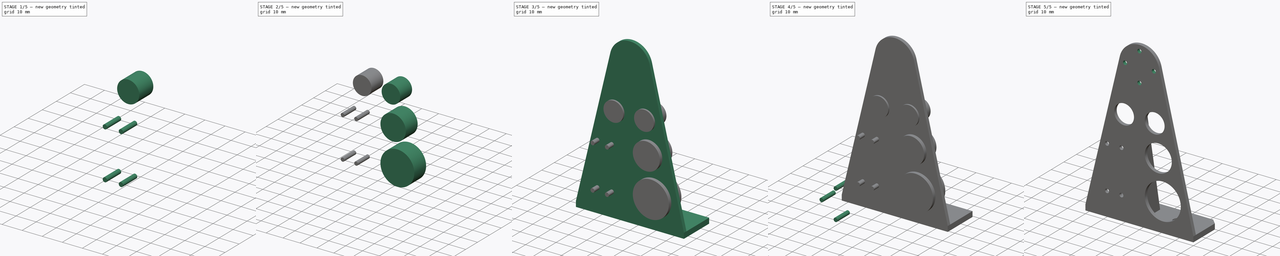
[diagram: build sequence overview — one tinted view per stage of 5, left to right]
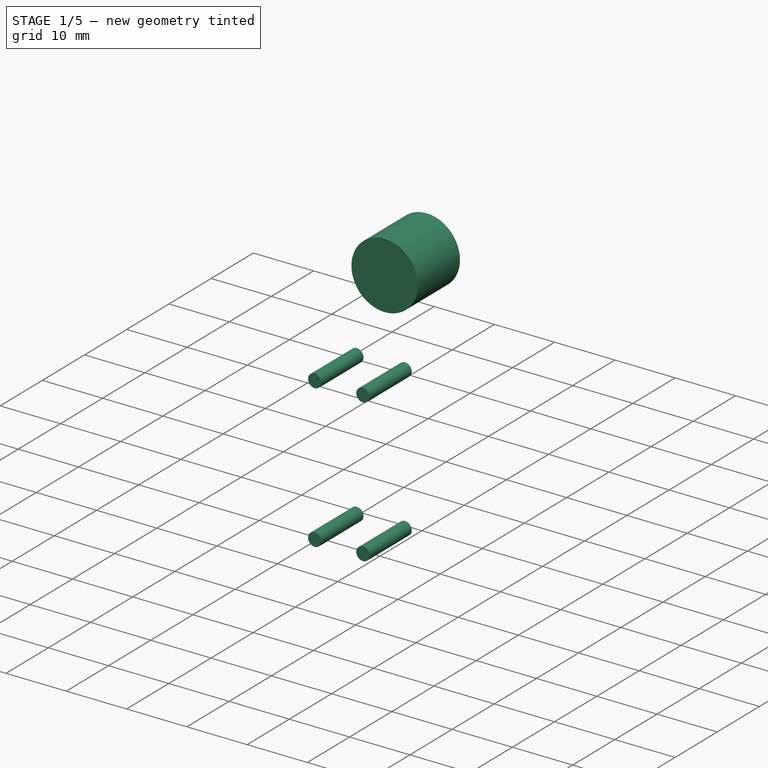
[diagram: stage 1 of 5 — iso view after this stage's code; geometry added in this stage tinted green]
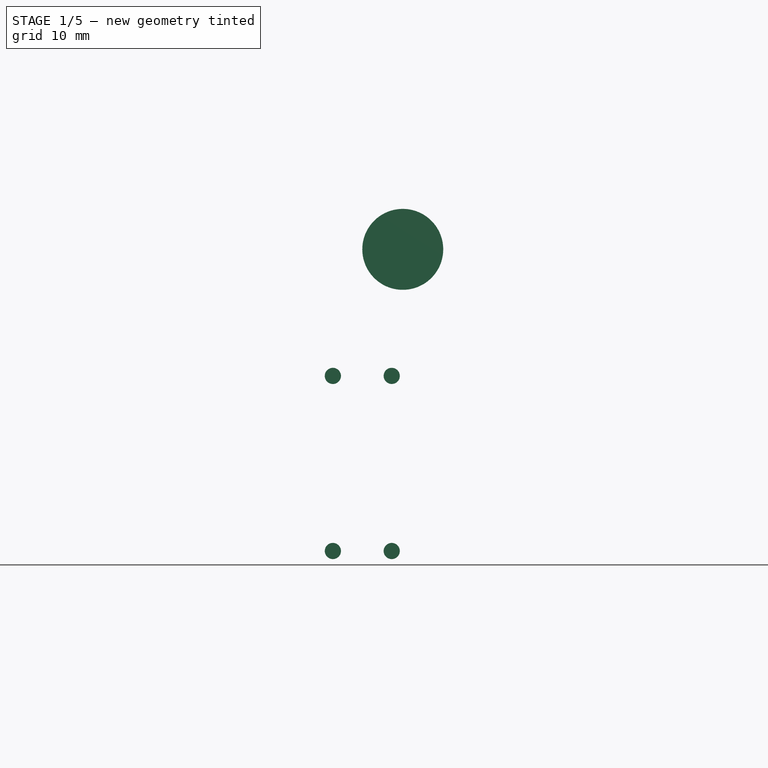
[diagram: stage 1 of 5 — front view after this stage's code; geometry added in this stage tinted green]
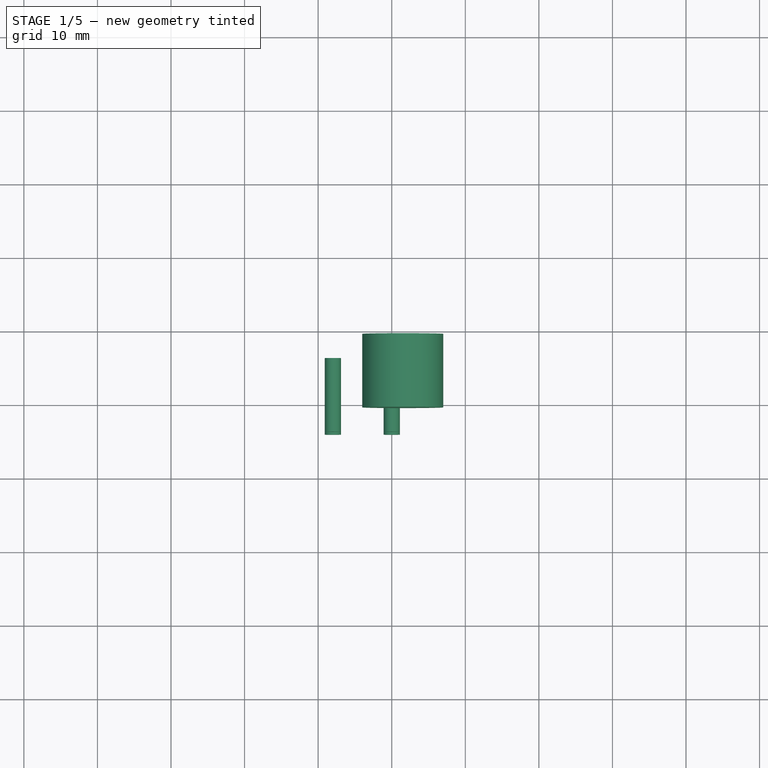
[diagram: stage 1 of 5 — top view after this stage's code; geometry added in this stage tinted green]
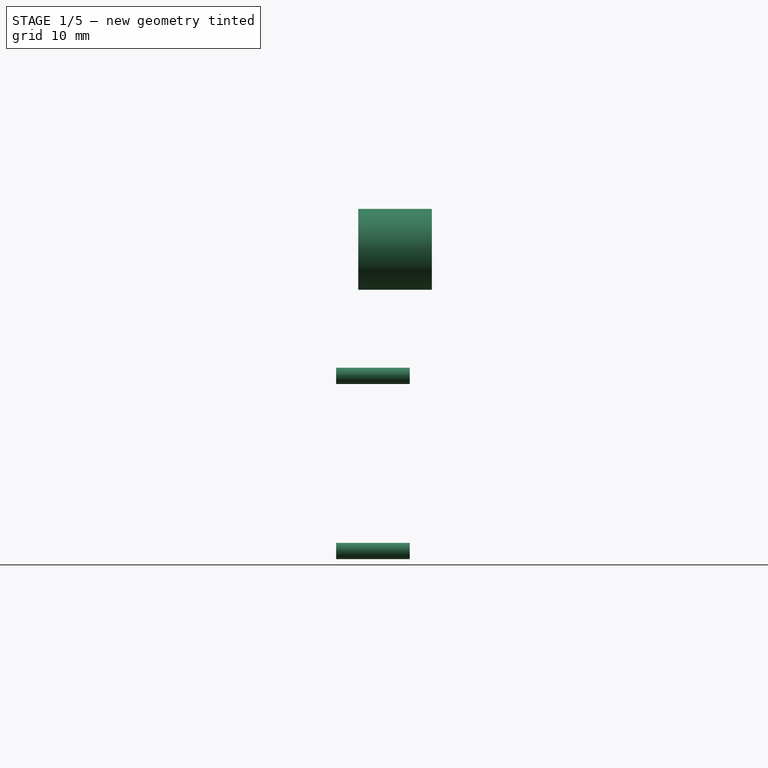
[diagram: stage 1 of 5 — right view after this stage's code; geometry added in this stage tinted green]
FCSTD DOCUMENT  (FreeCAD 0.15R4671 (Git))
Label: encoder_frame
License: All rights reserved
LicenseURL: http://en.wikipedia.org/wiki/All_rights_reserved
objects: Part::Cylinder×15, Part::MultiFuse×7, Sketcher::SketchObject×2, Part::Extrusion×2, Part::Cut×2, Part::Box×1, Part::Chamfer×1
note: 30 computed .brp shape members not serialized (recipe doc carries the construction recipe); baked Part::Feature solids carry a one-line shape summary decoded from their .brp

FEATURE [Part::Cylinder] Cylinder012
  Angle = 360
  Height = 10
  Placement = pos=(21.5,-1,54) rot=(-1,0,0;1.5708rad)
  Radius = 5.5
FEATURE [Part::Cylinder] Cylinder013
  Angle = 360
  Height = 10
  Placement = pos=(0,0,0) rot=(0,1,0;1.5708rad)
  Radius = 1.1
FEATURE [Part::Cylinder] Cylinder014
  Angle = 360
  Height = 10
  Placement = pos=(0,8,0) rot=(0,1,0;1.5708rad)
  Radius = 1.1
FEATURE [Part::Cylinder] Cylinder015
  Angle = 360
  Height = 10
  Placement = pos=(0,0,23.8) rot=(0,1,0;1.5708rad)
  Radius = 1.1
FEATURE [Part::Cylinder] Cylinder016
  Angle = 360
  Height = 10
  Placement = pos=(0,8,23.8) rot=(0,1,0;1.5708rad)
  Radius = 1.1
FEATURE [Part::MultiFuse] Fusion005
  Placement = pos=(20,-4,13) rot=(0,0,1;1.5708rad)
  Shapes = -> [Cylinder016,Cylinder013,Cylinder015,Cylinder014]
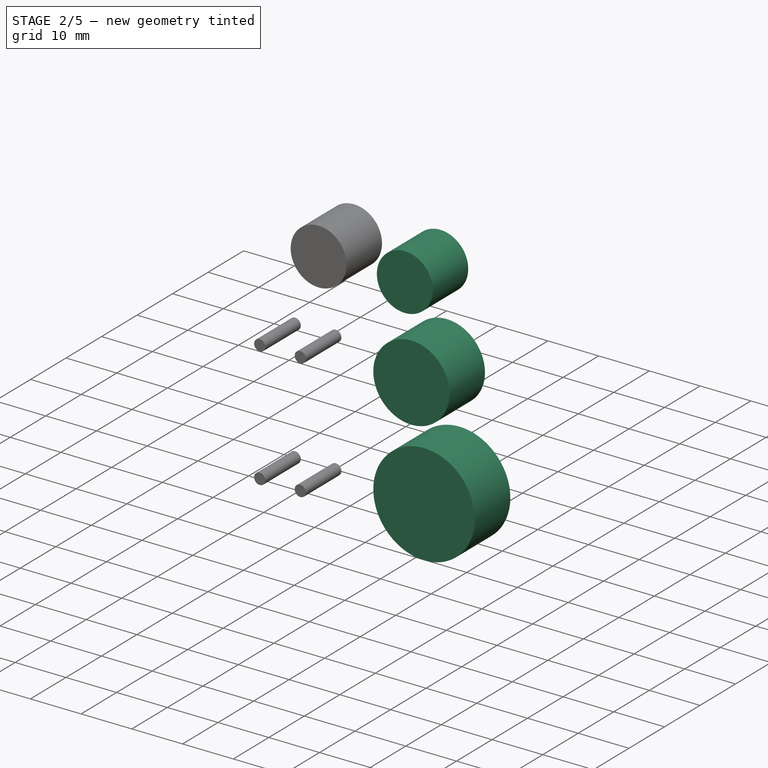
[diagram: stage 2 of 5 — iso view after this stage's code; geometry added in this stage tinted green]
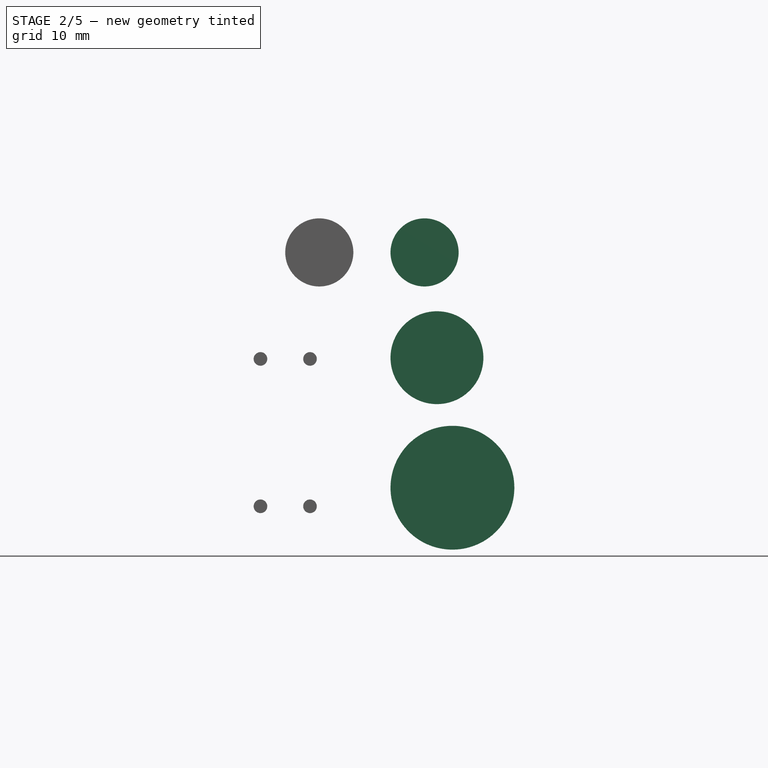
[diagram: stage 2 of 5 — front view after this stage's code; geometry added in this stage tinted green]
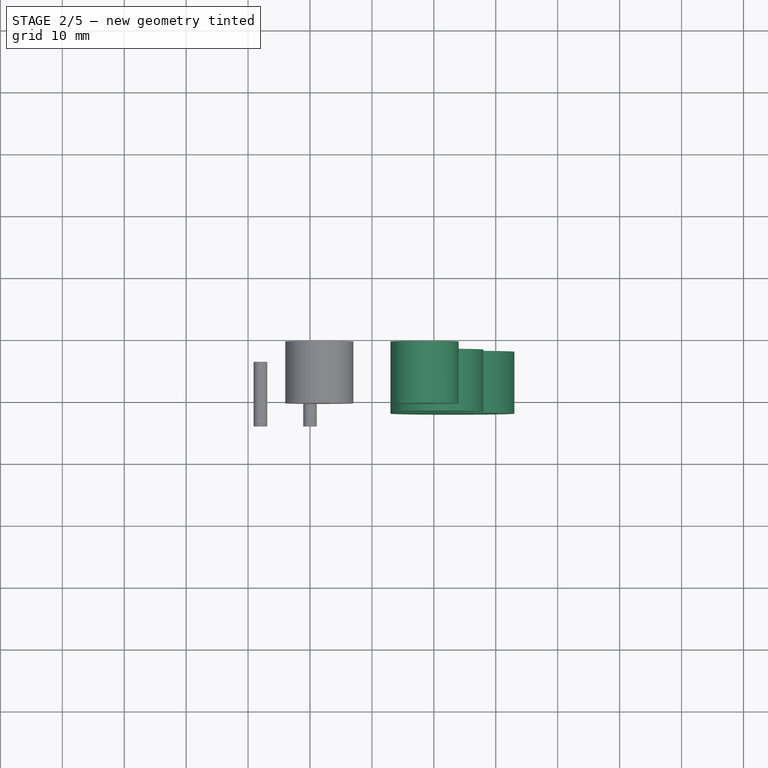
[diagram: stage 2 of 5 — top view after this stage's code; geometry added in this stage tinted green]
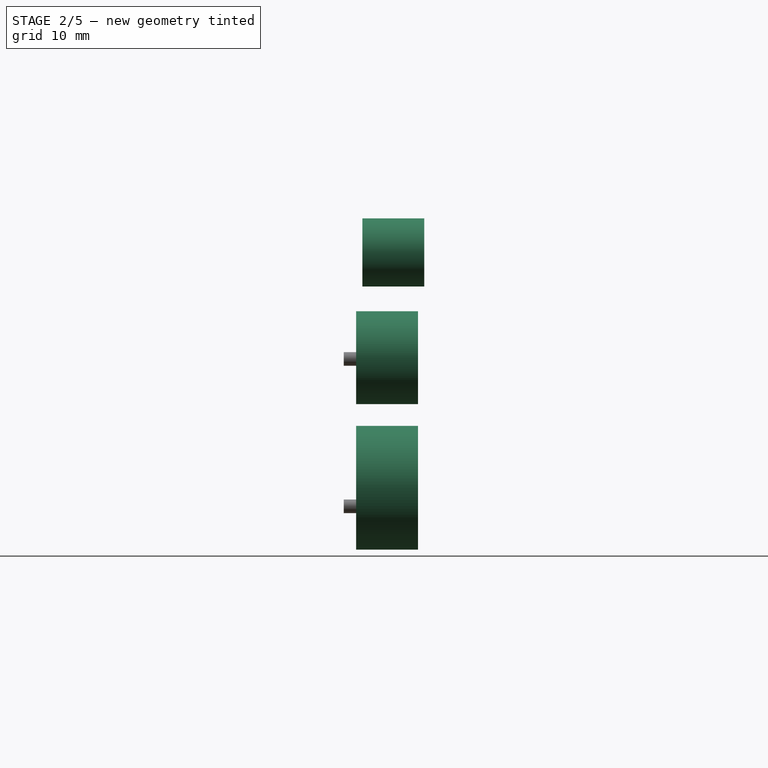
[diagram: stage 2 of 5 — right view after this stage's code; geometry added in this stage tinted green]
FEATURE [Part::Cylinder] Cylinder006
  Angle = 360
  Height = 10
  Placement = pos=(43,-2,16) rot=(-1,0,0;1.5708rad)
  Radius = 10
FEATURE [Part::Cylinder] Cylinder007
  Angle = 360
  Height = 10
  Placement = pos=(40.5,-2,37) rot=(-1,0,0;1.5708rad)
  Radius = 7.5
FEATURE [Part::Cylinder] Cylinder008
  Angle = 360
  Height = 10
  Placement = pos=(38.5,-1,54) rot=(-1,0,0;1.5708rad)
  Radius = 5.5
FEATURE [Part::MultiFuse] Fusion004
  Shapes = -> [Cylinder008,Cylinder006,Cylinder007]
FEATURE [Part::Cylinder] Cylinder011
  Angle = 360
  Height = 10
  Placement = pos=(38.5,-1,54) rot=(-1,0,0;1.5708rad)
  Radius = 5.5
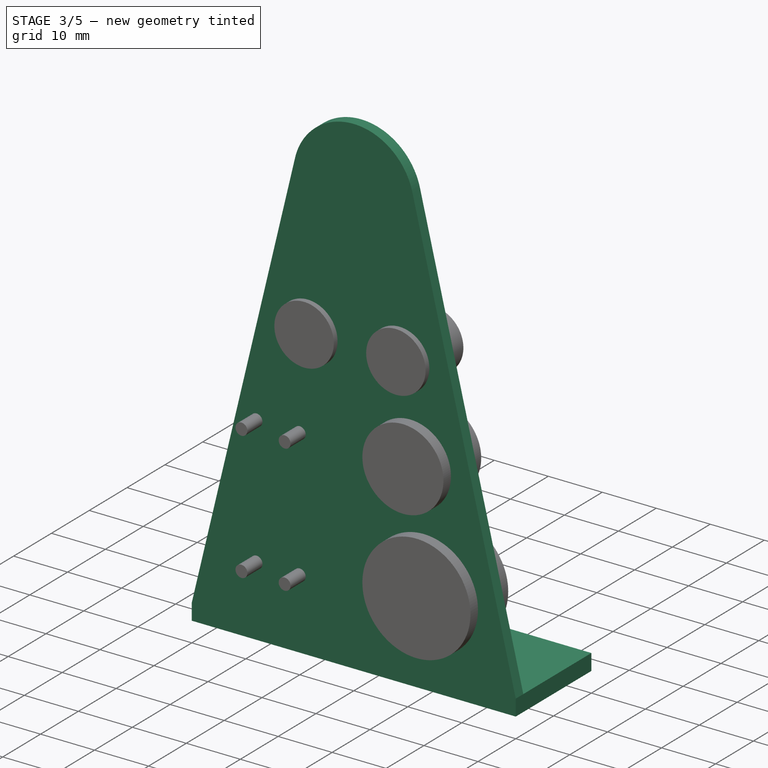
[diagram: stage 3 of 5 — iso view after this stage's code; geometry added in this stage tinted green]
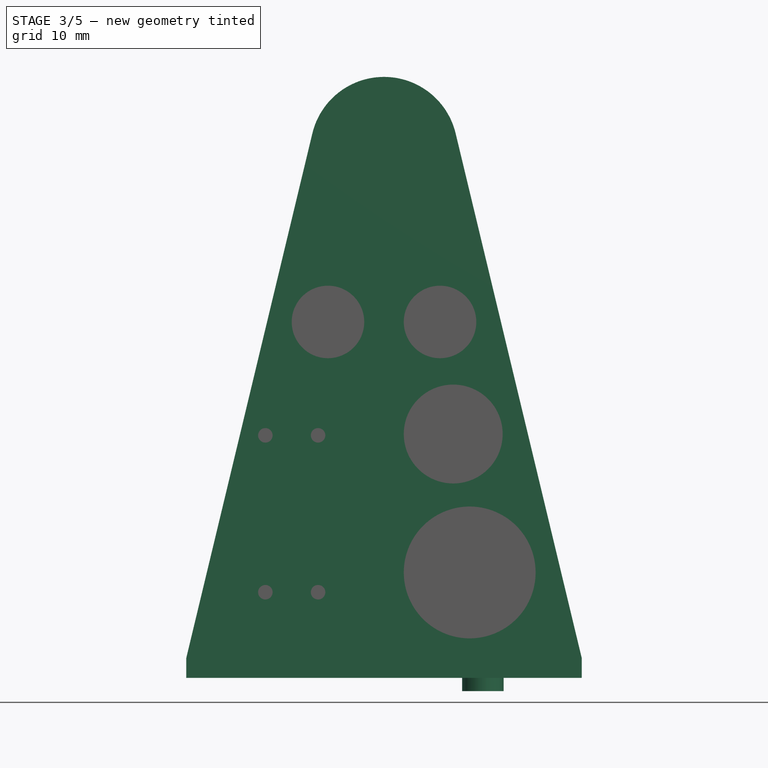
[diagram: stage 3 of 5 — front view after this stage's code; geometry added in this stage tinted green]
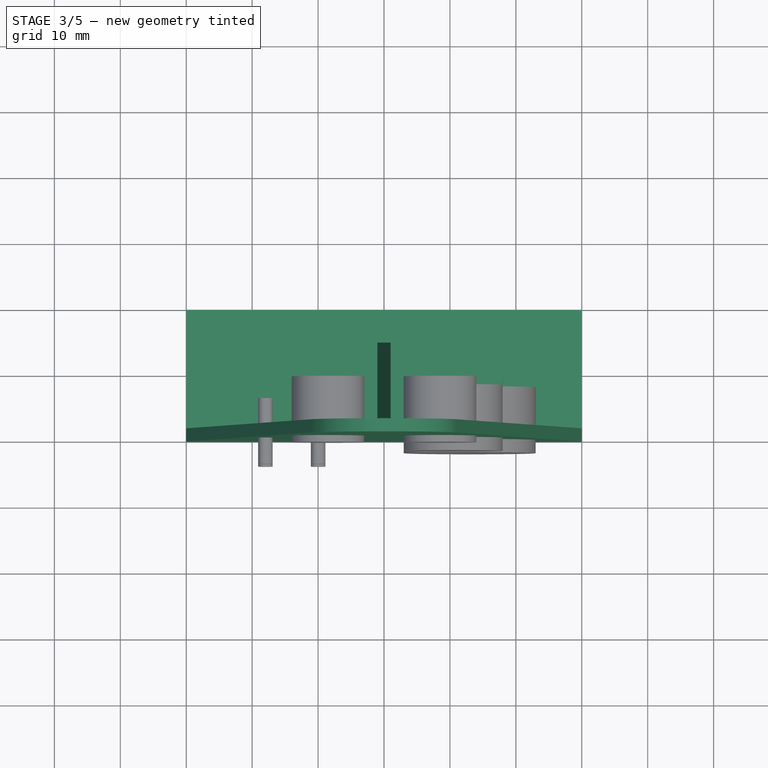
[diagram: stage 3 of 5 — top view after this stage's code; geometry added in this stage tinted green]
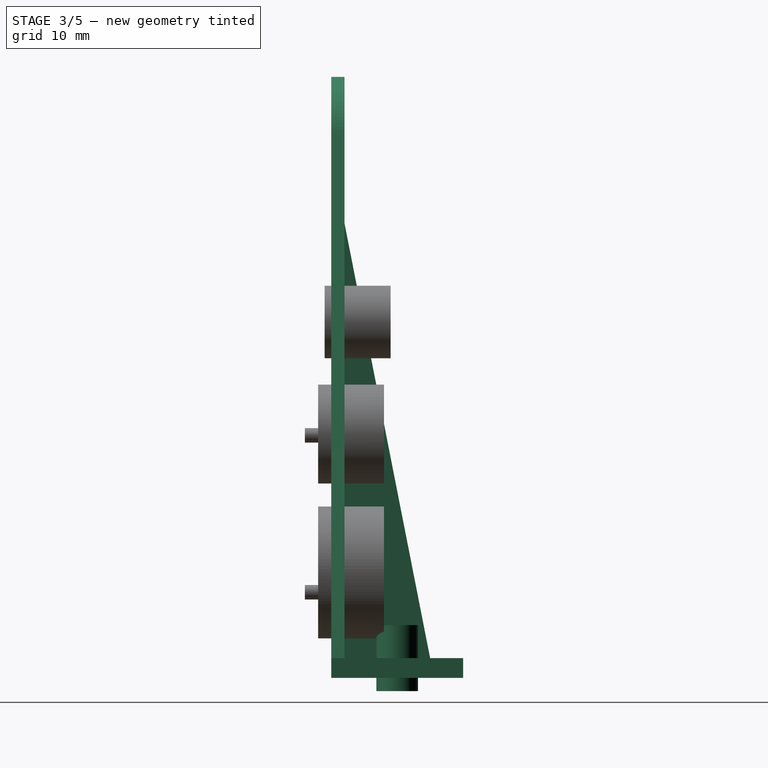
[diagram: stage 3 of 5 — right view after this stage's code; geometry added in this stage tinted green]
FEATURE [Part::Box] Box  label="Cube"
  Height = 3
  Length = 60
  Width = 20
FEATURE [Sketcher::SketchObject] Sketch
  Placement = pos=(0,0,0) rot=(1,0,0;1.5708rad)
  Support = -> Box [Face3]
  sketch-geometry (5):
    g0: GeomPoint [constr] X=0 Y=3 Z=0
    g1: LineSegment StartX=0 StartY=3 StartZ=0 EndX=60 EndY=3 EndZ=0
    g2: LineSegment StartX=60 StartY=3 StartZ=0 EndX=40.8896 EndY=82.505 EndZ=0
    g3: LineSegment StartX=0 StartY=3 StartZ=0 EndX=19.1104 EndY=82.505 EndZ=0
    g4: ArcOfCircle CenterX=30 CenterY=80 CenterZ=0 NormalX=0 NormalY=0 NormalZ=1 Radius=11.174 StartAngle=0.226103 EndAngle=2.91549
  constraints (14):
    c: PointOnObject(g0,g-2)
    c: DistanceY(g0) = 3
    c: Coincident(g1,g0)
    c: Horizontal(g1)
    c: DistanceX(g1) = 60
    c: Coincident(g2,g1)
    c: Coincident(g3,g0)
    c: Coincident(g4,g3)
    c: Coincident(g4,g2)
    c: DistanceY(g4) = 80
    c: DistanceX(g3) = 19.1104
    c: DistanceX(g2) = 40.8896
    c: DistanceY(g3) = 82.505
    c: DistanceY(g2) = 82.505
FEATURE [Part::Extrusion] Extrude
  Base = -> Sketch
  Dir = (0,2,0)
  Solid = true
FEATURE [Sketcher::SketchObject] Sketch001
  Placement = pos=(0,0,0) rot=(0.57735,0.57735,0.57735;2.0944rad)
  sketch-geometry (4):
    g0: GeomPoint [constr] X=2 Y=3 Z=0
    g1: LineSegment StartX=2 StartY=3 StartZ=0 EndX=15 EndY=3 EndZ=0
    g2: LineSegment StartX=2 StartY=3 StartZ=0 EndX=2 EndY=69 EndZ=0
    g3: LineSegment StartX=2 StartY=69 StartZ=0 EndX=15 EndY=3 EndZ=0
  constraints (10):
    c: DistanceY(g0) = 3
    c: DistanceX(g0) = 2
    c: Coincident(g1,g0)
    c: Horizontal(g1)
    c: DistanceX(g1) = 15
    c: Coincident(g2,g0)
    c: Vertical(g2)
    c: DistanceY(g2) = 69
    c: Coincident(g3,g2)
    c: Coincident(g3,g1)
FEATURE [Part::Extrusion] Extrude001
  Base = -> Sketch001
  Dir = (2,0,0)
  Placement = pos=(29,0,0) rot=(0,0,1;0rad)
  Solid = true
FEATURE [Part::Cylinder] Cylinder001
  Angle = 360
  Height = 10
  Placement = pos=(45,10,-2) rot=(0,0,1;0rad)
  Radius = 3.15
FEATURE [Part::MultiFuse] Fusion003
  Shapes = -> [Box,Extrude,Extrude001]
FEATURE [Part::MultiFuse] Fusion006
  Shapes = -> [Fusion005,Cylinder012,Cylinder011,Fusion004]
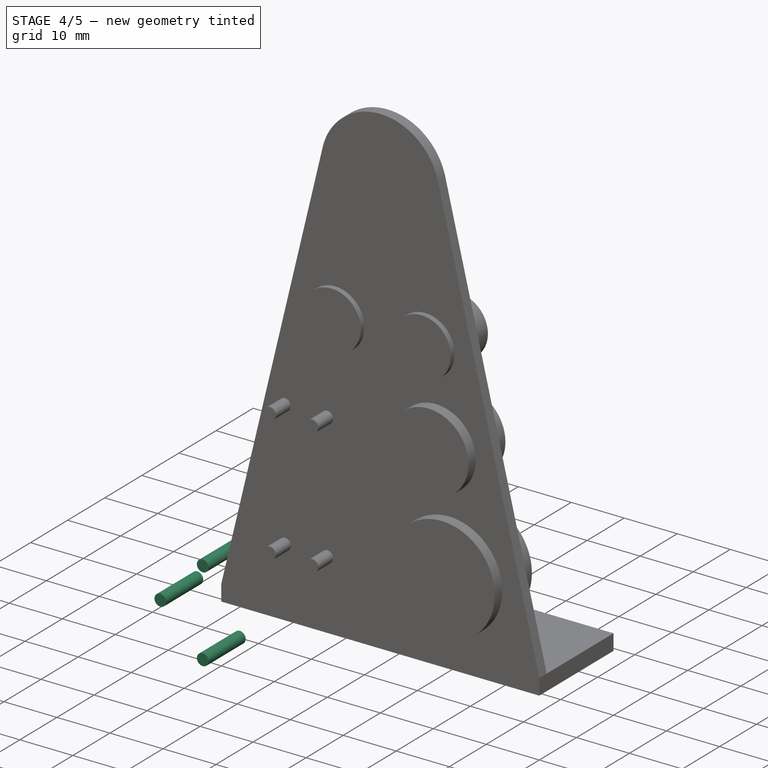
[diagram: stage 4 of 5 — iso view after this stage's code; geometry added in this stage tinted green]
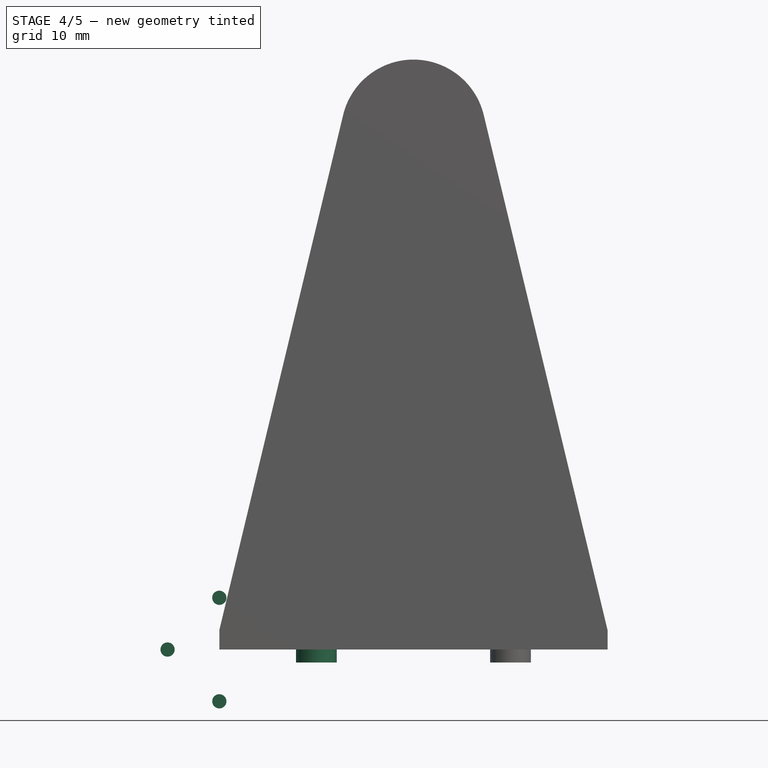
[diagram: stage 4 of 5 — front view after this stage's code; geometry added in this stage tinted green]
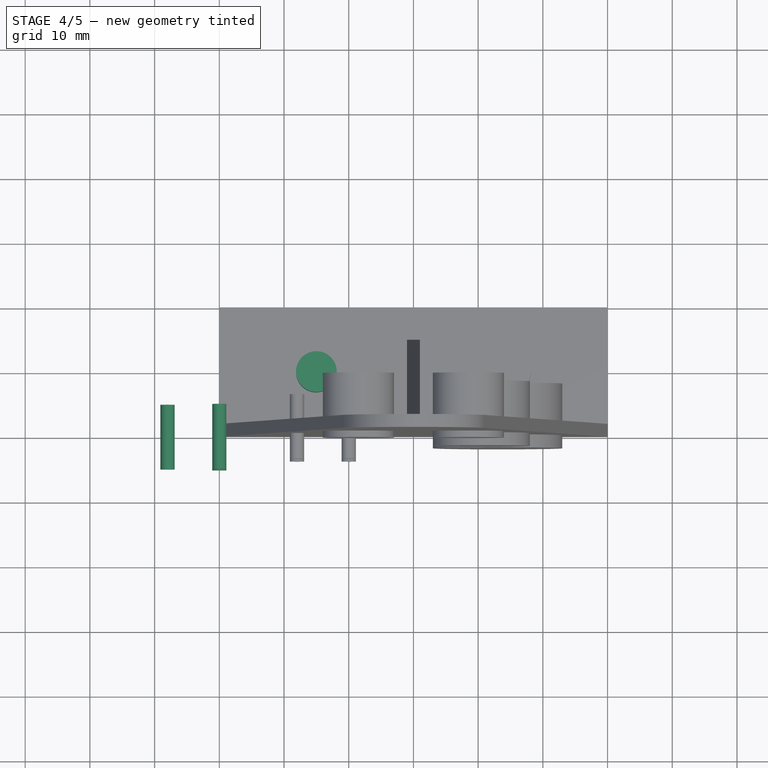
[diagram: stage 4 of 5 — top view after this stage's code; geometry added in this stage tinted green]
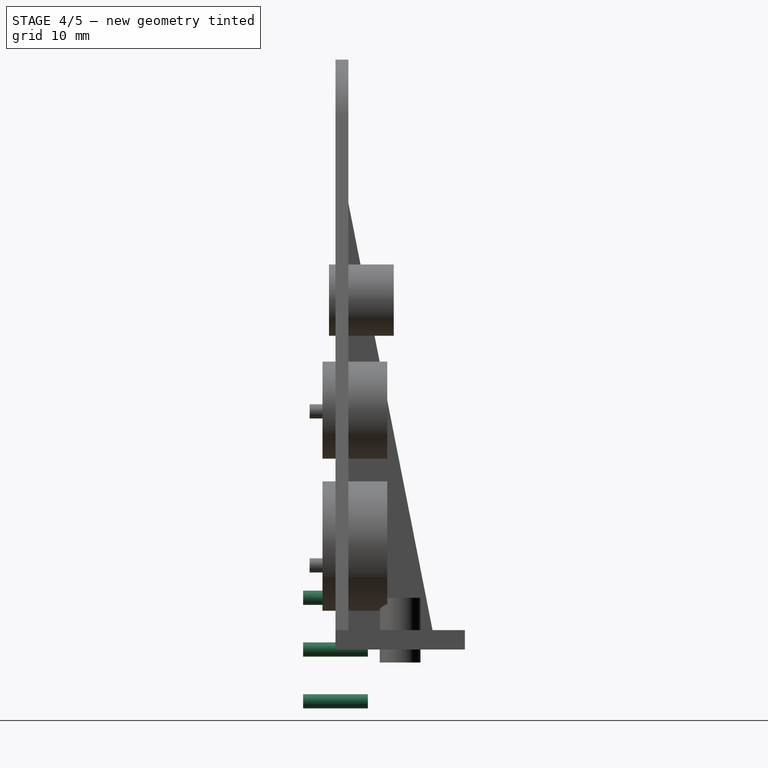
[diagram: stage 4 of 5 — right view after this stage's code; geometry added in this stage tinted green]
FEATURE [Part::Cylinder] Cylinder
  Angle = 360
  Height = 10
  Placement = pos=(15,10,-2) rot=(0,0,1;0rad)
  Radius = 3.15
FEATURE [Part::Cylinder] Cylinder003
  Angle = 360
  Height = 10
  Placement = pos=(0,5,8) rot=(1,0,0;1.5708rad)
  Radius = 1.1
FEATURE [Part::Cylinder] Cylinder004
  Angle = 360
  Height = 10
  Placement = pos=(-8,5,0) rot=(1,0,0;1.5708rad)
  Radius = 1.1
FEATURE [Part::Cylinder] Cylinder005
  Angle = 360
  Height = 10
  Placement = pos=(0,5,-8) rot=(1,0,0;1.5708rad)
  Radius = 1.1
FEATURE [Part::MultiFuse] Fusion001
  Shapes = -> [Cylinder001,Cylinder]
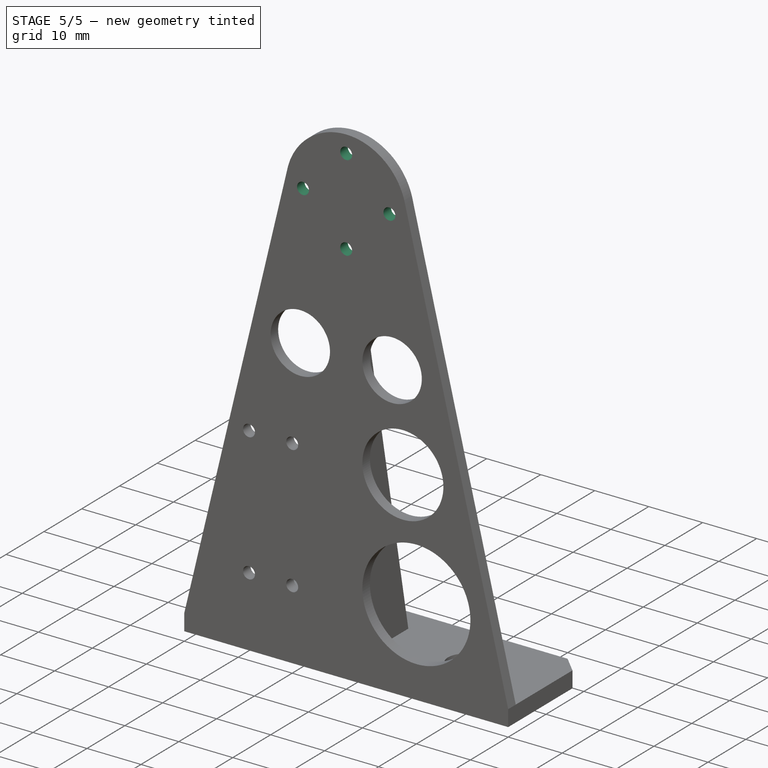
[diagram: stage 5 of 5 — iso view after this stage's code; geometry added in this stage tinted green]
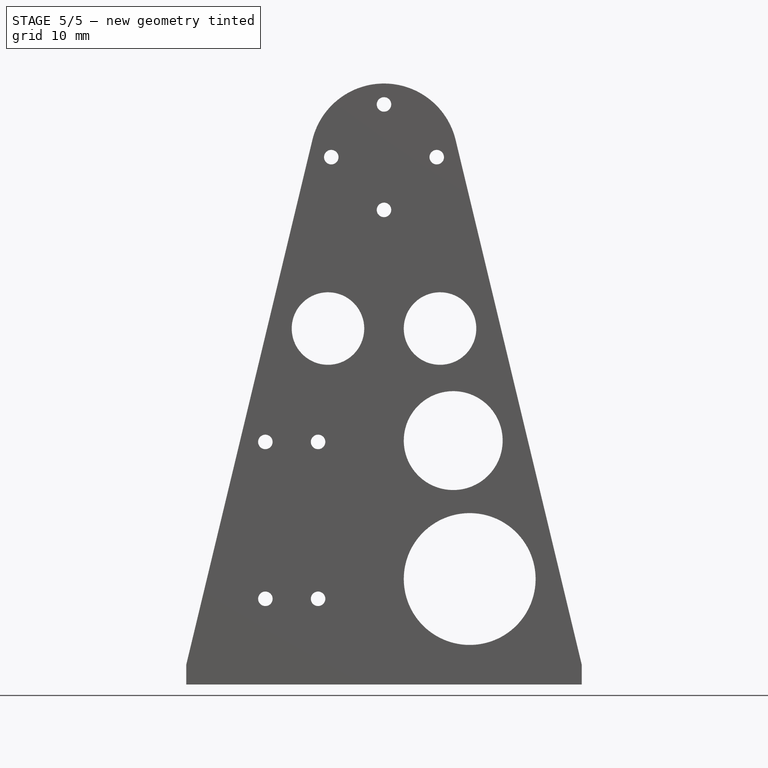
[diagram: stage 5 of 5 — front view after this stage's code; geometry added in this stage tinted green]
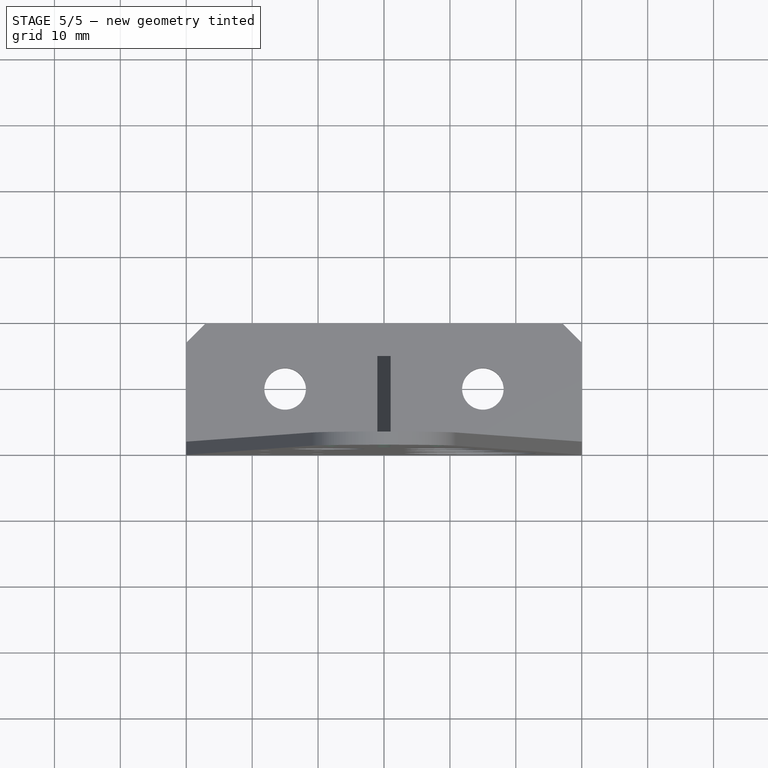
[diagram: stage 5 of 5 — top view after this stage's code; geometry added in this stage tinted green]
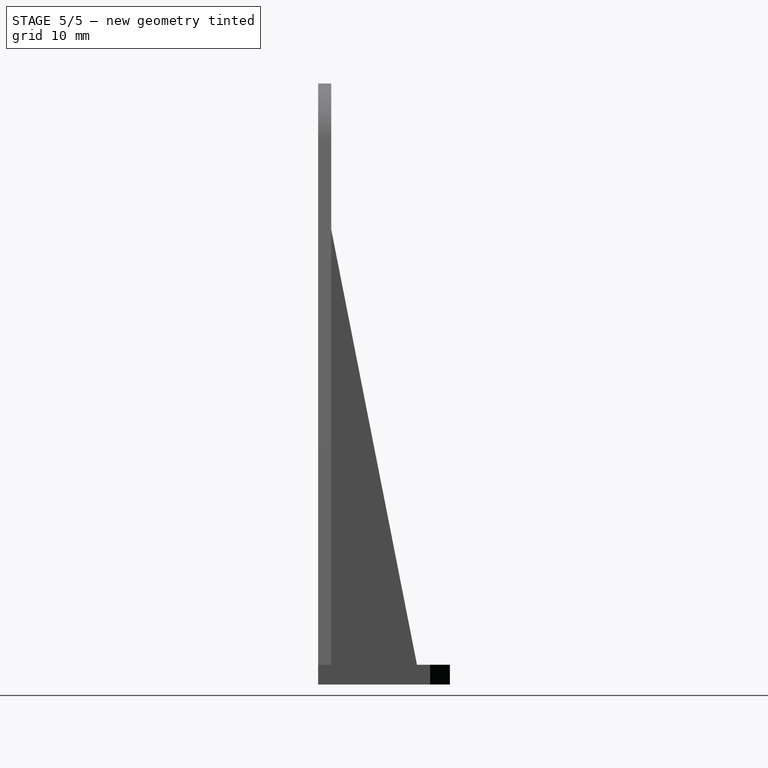
[diagram: stage 5 of 5 — right view after this stage's code; geometry added in this stage tinted green]
FEATURE [Part::Cylinder] Cylinder002
  Angle = 360
  Height = 10
  Placement = pos=(8,5,0) rot=(1,0,0;1.5708rad)
  Radius = 1.1
FEATURE [Part::MultiFuse] Fusion
  Placement = pos=(30,0,80) rot=(0,0,1;0rad)
  Shapes = -> [Cylinder005,Cylinder003,Cylinder004,Cylinder002]
FEATURE [Part::MultiFuse] Fusion002
  Shapes = -> [Fusion,Fusion001]
FEATURE [Part::Cut] Cut
  Base = -> Fusion003
  Tool = -> Fusion002
FEATURE [Part::Chamfer] Chamfer
  Base = -> Cut
  Edges = 2 edges r=3: [Edge9,Edge11]
FEATURE [Part::Cut] Cut001
  Base = -> Chamfer
  Tool = -> Fusion006
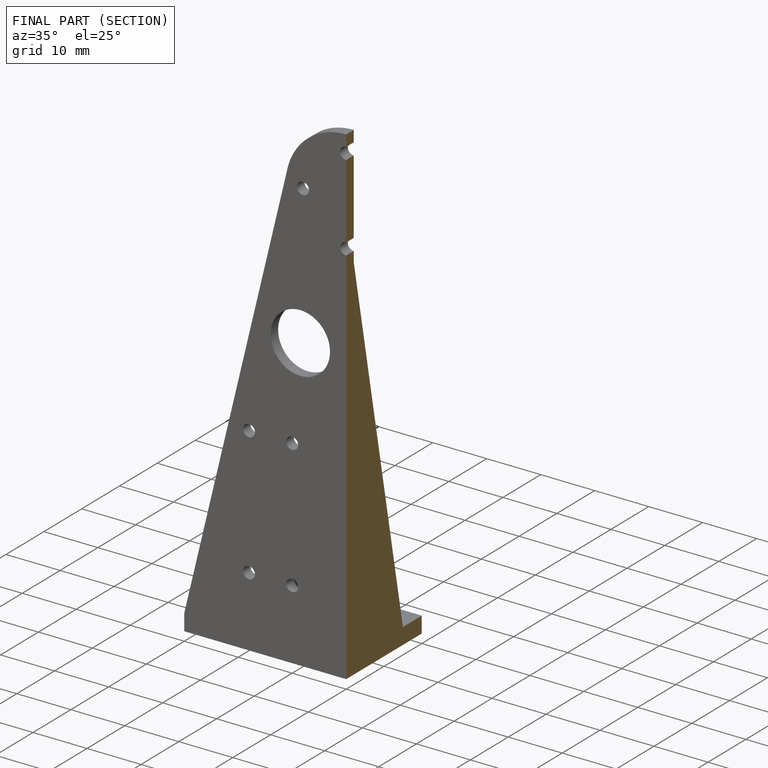
[diagram: finished part — half-section view (interior)]
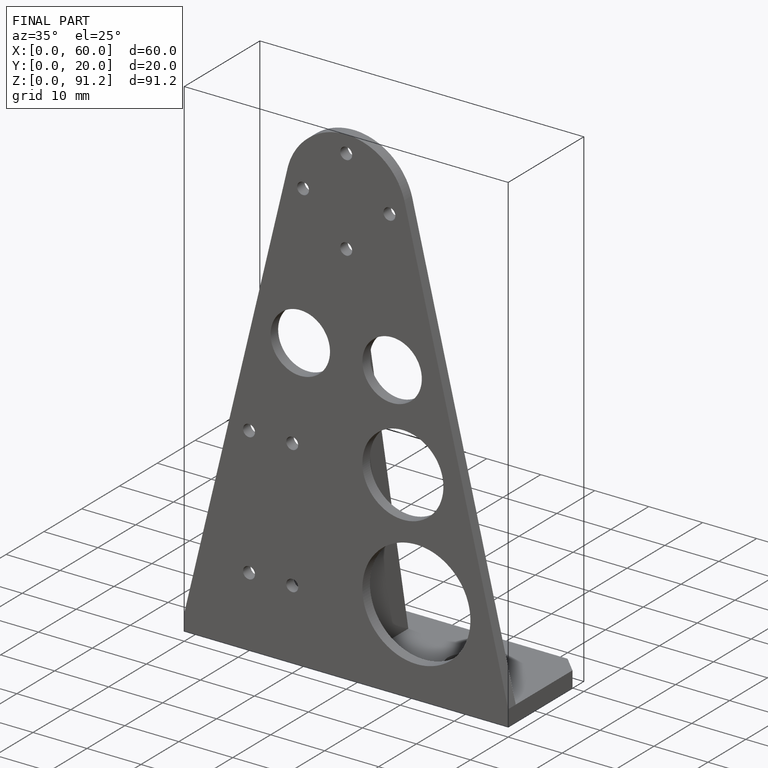
[diagram: finished part — iso view with bounding-box wireframe]
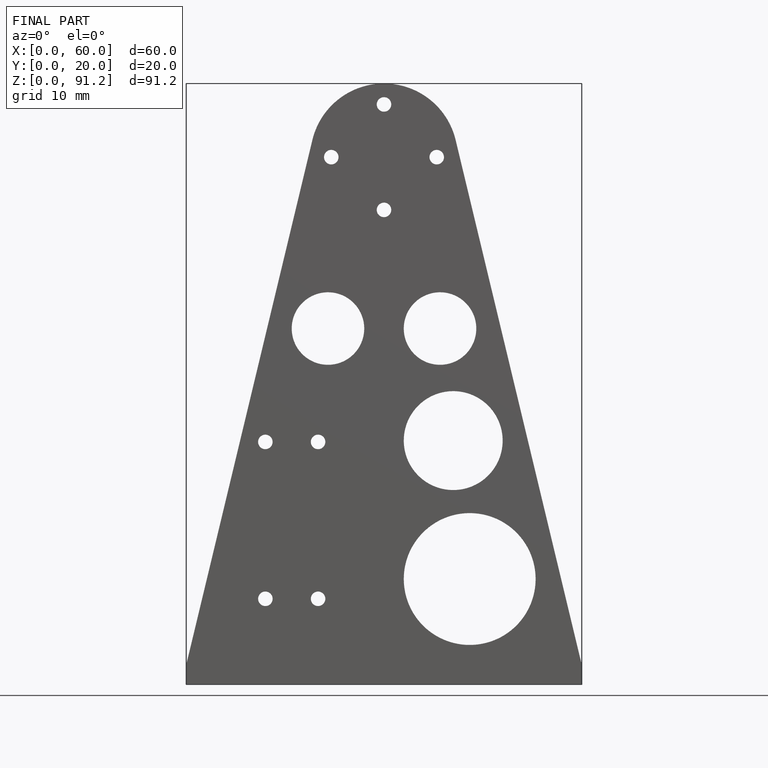
[diagram: finished part — front view with bounding-box wireframe]
